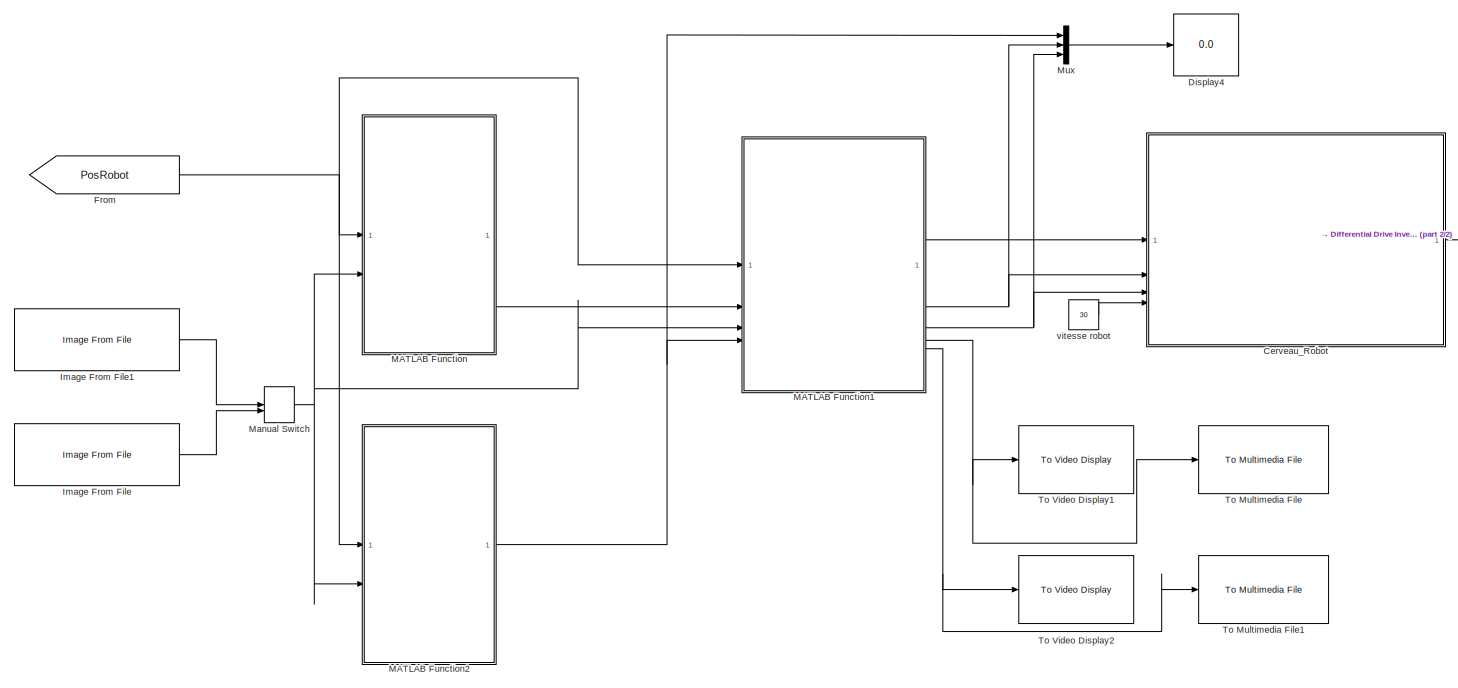
[diagram: root canvas - part 1/2, most of the canvas]
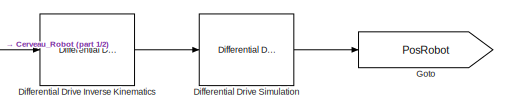
[diagram: root canvas - part 2/2, middle right region]
MODEL slx_90cf911ac041
KIND model
CONFIG AbsTol = auto
CONFIG EnableMultiTasking = off
CONFIG FixedStep = auto
CONFIG InitFcn = close all;\n\n\n
CONFIG MaxStep = auto
CONFIG MinStep = auto
CONFIG RelTol = 1e-3
CONFIG SampleTimeConstraint = Unconstrained
CONFIG SolverName = VariableStepAuto
CONFIG StartTime = 0.0
CONFIG StopTime = 300
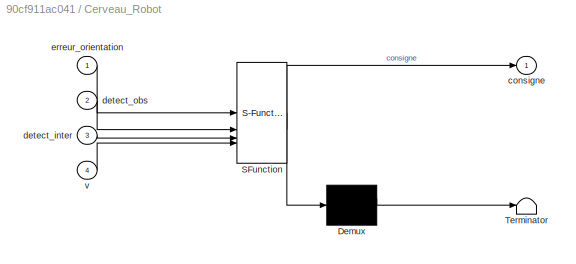
BLOCK [SubSystem] Cerveau_Robot
  ErrorFcn = Stateflow.Translate.translate
  PermitHierarchicalResolution = ExplicitOnly
  SFBlockType = Chart
  TreatAsAtomicUnit = on
BLOCK [Demux] Cerveau_Robot/ Demux 
  Outputs = 1
BLOCK [S-Function] Cerveau_Robot/ SFunction 
  EnableBusSupport = on
  FunctionName = sf_sfun
  PortCounts = [4 2]
  SFcnIsStateOwnerBlock = off
  SFunctionDeploymentMode = off
  Tag = Stateflow S-Function 5
BLOCK [Terminator] Cerveau_Robot/ Terminator 
BLOCK [Outport] Cerveau_Robot/consigne
BLOCK [Inport] Cerveau_Robot/detect_inter
  Port = 3
BLOCK [Inport] Cerveau_Robot/detect_obs
  Port = 2
BLOCK [Inport] Cerveau_Robot/erreur_orientation
BLOCK [Inport] Cerveau_Robot/v
  Port = 4
BLOCK [Reference] Differential Drive Inverse Kinematics  REF=mobileRoboticsLib/Kinematic Models/Differential Drive/Differential Drive
Inverse Kinematics
  SourceBlock = mobileRoboticsLib/Kinematic Models/Differential Drive/Differential Drive\nInverse Kinematics
  SourceProductName = Mobile Robotics Simulation Toolbox
  SourceType = Differential Drive Inverse Kinematics
BLOCK [Reference] Differential Drive Simulation  REF=mobileRoboticsLib/Kinematic Models/Differential Drive/Differential Drive Simulation
  SourceBlock = mobileRoboticsLib/Kinematic Models/Differential Drive/Differential Drive Simulation
  SourceProductName = Mobile Robotics Simulation Toolbox
  SourceType = Differential Drive Simulation
BLOCK [Display] Display4
  Decimation = 1
BLOCK [From] From
  GotoTag = PosRobot
BLOCK [Goto] Goto
  GotoTag = PosRobot
BLOCK [Reference] Image From File  REF=visionsources/Image From File
  SourceBlock = visionsources/Image From File
  SourceType = Image From File
  Tag = vipblks_nd
BLOCK [Reference] Image From File1  REF=visionsources/Image From File
  SourceBlock = visionsources/Image From File
  SourceType = Image From File
  Tag = vipblks_nd
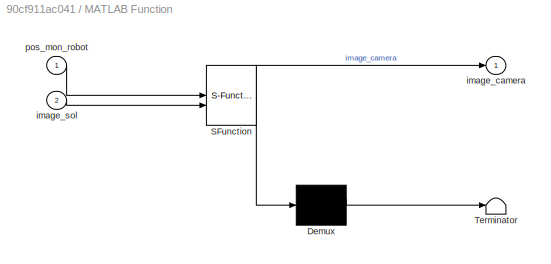
BLOCK [SubSystem] MATLAB Function
  ErrorFcn = Stateflow.Translate.translate
  PermitHierarchicalResolution = ExplicitOnly
  SFBlockType = MATLAB Function
  TreatAsAtomicUnit = on
BLOCK [Demux] MATLAB Function/ Demux 
  Outputs = 1
BLOCK [S-Function] MATLAB Function/ SFunction 
  EnableBusSupport = on
  FunctionName = sf_sfun
  PortCounts = [2 2]
  SFcnIsStateOwnerBlock = off
  SFunctionDeploymentMode = off
  Tag = Stateflow S-Function 2
BLOCK [Terminator] MATLAB Function/ Terminator 
BLOCK [Outport] MATLAB Function/image_camera
BLOCK [Inport] MATLAB Function/image_sol
  Port = 2
BLOCK [Inport] MATLAB Function/pos_mon_robot
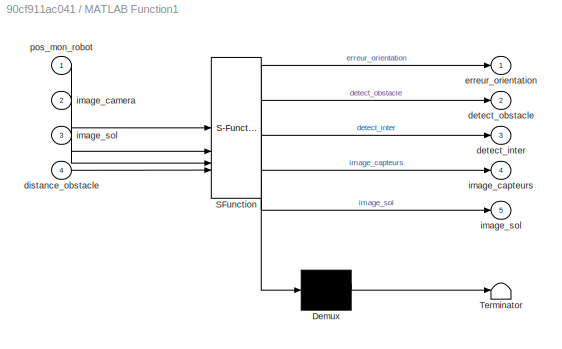
BLOCK [SubSystem] MATLAB Function1
  ErrorFcn = Stateflow.Translate.translate
  PermitHierarchicalResolution = ExplicitOnly
  SFBlockType = MATLAB Function
  TreatAsAtomicUnit = on
BLOCK [Demux] MATLAB Function1/ Demux 
  Outputs = 1
BLOCK [S-Function] MATLAB Function1/ SFunction 
  EnableBusSupport = on
  FunctionName = sf_sfun
  PortCounts = [4 6]
  SFcnIsStateOwnerBlock = off
  SFunctionDeploymentMode = off
  Tag = Stateflow S-Function 1
BLOCK [Terminator] MATLAB Function1/ Terminator 
BLOCK [Outport] MATLAB Function1/detect_inter
  Port = 3
BLOCK [Outport] MATLAB Function1/detect_obstacle
  Port = 2
BLOCK [Inport] MATLAB Function1/distance_obstacle
  Port = 4
BLOCK [Outport] MATLAB Function1/erreur_orientation
BLOCK [Inport] MATLAB Function1/image_camera
  Port = 2
BLOCK [Outport] MATLAB Function1/image_capteurs
  Port = 4
BLOCK [Outport] MATLAB Function1/image_sol
  Port = 5
BLOCK [Inport] MATLAB Function1/image_sol 
  Port = 3
BLOCK [Inport] MATLAB Function1/pos_mon_robot
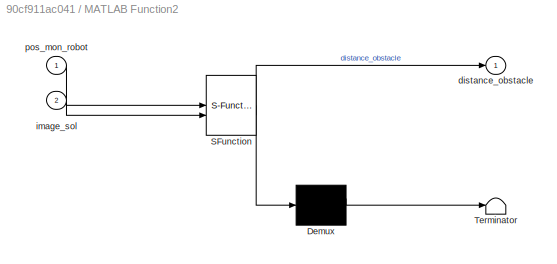
BLOCK [SubSystem] MATLAB Function2
  ErrorFcn = Stateflow.Translate.translate
  PermitHierarchicalResolution = ExplicitOnly
  SFBlockType = MATLAB Function
  TreatAsAtomicUnit = on
BLOCK [Demux] MATLAB Function2/ Demux 
  Outputs = 1
BLOCK [S-Function] MATLAB Function2/ SFunction 
  EnableBusSupport = on
  FunctionName = sf_sfun
  PortCounts = [2 2]
  SFcnIsStateOwnerBlock = off
  SFunctionDeploymentMode = off
  Tag = Stateflow S-Function 3
BLOCK [Terminator] MATLAB Function2/ Terminator 
BLOCK [Outport] MATLAB Function2/distance_obstacle
BLOCK [Inport] MATLAB Function2/image_sol
  Port = 2
BLOCK [Inport] MATLAB Function2/pos_mon_robot
BLOCK [ManualSwitch] Manual Switch
  CurrentSetting = 0
BLOCK [Mux] Mux
  DisplayOption = bar
  Inputs = 3
BLOCK [Reference] To Multimedia File  REF=dspvision/To Multimedia File
  SourceBlock = dspvision/To Multimedia File
  SourceType = To Multimedia File
BLOCK [Reference] To Multimedia File1  REF=dspvision/To Multimedia File
  SourceBlock = dspvision/To Multimedia File
  SourceType = To Multimedia File
BLOCK [Reference] To Video Display1  REF=visionsinks/To Video Display
  SourceBlock = visionsinks/To Video Display
  SourceType = To Video Display
BLOCK [Reference] To Video Display2  REF=visionsinks/To Video Display
  SourceBlock = visionsinks/To Video Display
  SourceType = To Video Display
BLOCK [Constant] vitesse robot
  Value = 30
LINE Cerveau_Robot:1 -> Differential Drive Inverse Kinematics:1
LINE Differential Drive Inverse Kinematics:1 -> Differential Drive Simulation:1
LINE Differential Drive Simulation:1 -> Goto:1
NET From:1 -> MATLAB Function1:1, MATLAB Function2:1, MATLAB Function:1
LINE Image From File1:1 -> Manual Switch:1
LINE Image From File:1 -> Manual Switch:2
LINE MATLAB Function1:1 -> Cerveau_Robot:1
NET MATLAB Function1:2 -> Cerveau_Robot:2, Mux:2
NET MATLAB Function1:3 -> Cerveau_Robot:3, Mux:3
NET MATLAB Function1:4 -> To Multimedia File:1, To Video Display1:1
NET MATLAB Function1:5 -> To Multimedia File1:1, To Video Display2:1
NET MATLAB Function2:1 -> MATLAB Function1:4, Mux:1
LINE MATLAB Function:1 -> MATLAB Function1:2
NET Manual Switch:1 -> MATLAB Function1:3, MATLAB Function2:2, MATLAB Function:2
LINE Mux:1 -> Display4:1
LINE vitesse robot:1 -> Cerveau_Robot:4
note: NET lines group one-source signal fan-out (src -> all destinations, sorted); 1:1 wires keep LINE
CHART Cerveau_Robot states=1 transitions=1
  STATE_LABEL "SuivreLigne\nangle_dir=erreur_orientation;\nw = angle_dir;%algo reliant l'erreur d'orientation du robot à la consigne de vitesse angulaire\nconsigne = [v;w];"
CHART MATLAB Function1 states=1 transitions=1
  STATE_LABEL 'eML_blk_kernel()'
  STATE_LABEL 'SCRIPT:\n% Ce bloc doit analyser les données venant des capteurs pour en extraire les informations d’erreur d’orientation du robot, détection d’un obstacle et détection d’une intersection. \n% Ce bloc permet aussi la génération d’une animation video montrant l’évolution du robot sur le terrain et la vision du robot (figure 1).\n% •\tEntrées : pos_mon_robot, image_camera, distance_obstacle, image_sol\n%...<+3608ch>'
CHART MATLAB Function states=1 transitions=1
  STATE_LABEL 'eML_blk_kernel()'
  STATE_LABEL 'SCRIPT:\n% Son rôle est de modéliser la photo brute prise par la caméra. Le modèle est extrêmement simplifié et fait comme si la photo était prise à la verticale et à l’avant du robot (par d’angle de vue).\n% •\tEntrées : pos_mon_robot (position du robot), image_sol (« terrain » soit la vue du ciel du circuit où doit évoluer le robot )\n% •\tSorties : image_camera (vue du ciel du champ de vision du rob...<+743ch>'
CHART MATLAB Function2 states=1 transitions=1
  STATE_LABEL 'eML_blk_kernel()'
  STATE_LABEL 'SCRIPT:\n% Son rôle est de modéliser le signal de sortie du télémètre à l’avant du robot.\n% •\tEntrées : pos_mon_robot (position du robot), image_sol (« terrain » soit la vue du ciel du circuit où doit évoluer le robot )\n% •\tSorties : distance_obstacle (distance de l’obstacle)\n\n\nfunction distance_obstacle    = telemetre(pos_mon_robot, image_sol)\n\n% Caractéristiques des coordonnées du champ de vision...<+903ch>'
CHART  states=0 transitions=0
CHART  states=0 transitions=0
CHART  states=0 transitions=0
CHART  states=0 transitions=0
